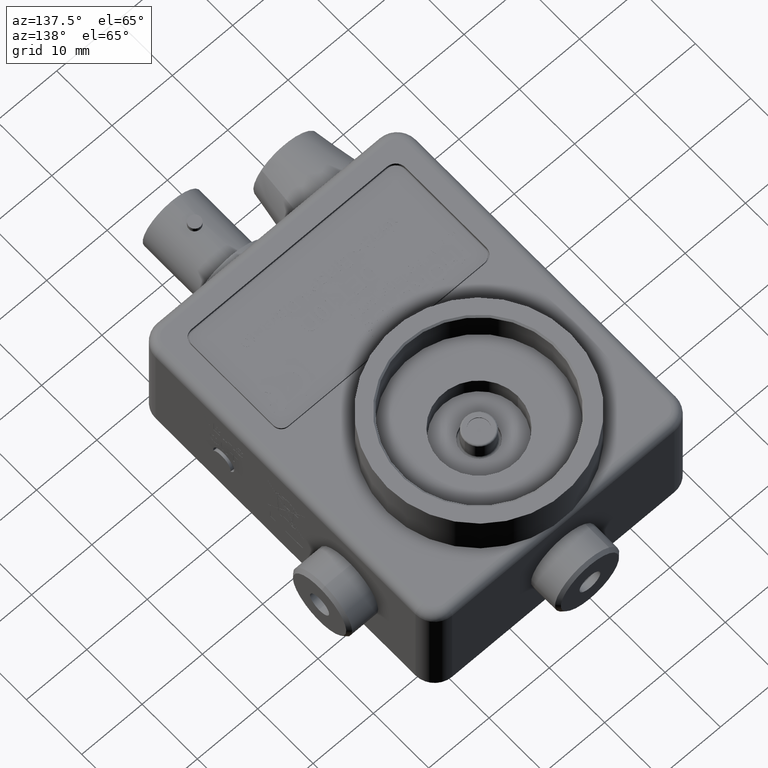
[diagram: clean part render]
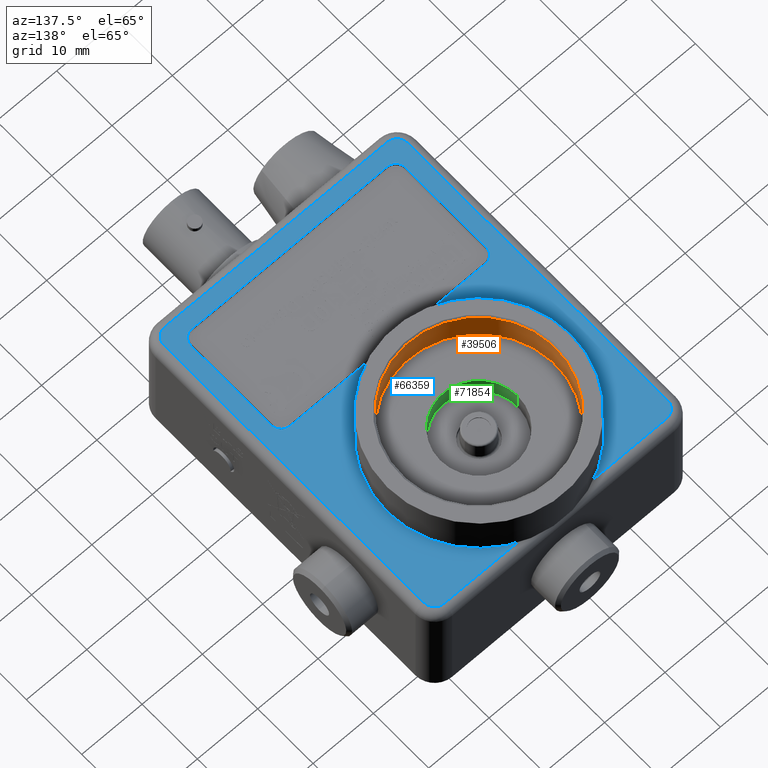
[diagram: same view with three faces highlighted in distinct colors, each labeled with its STEP entity id]
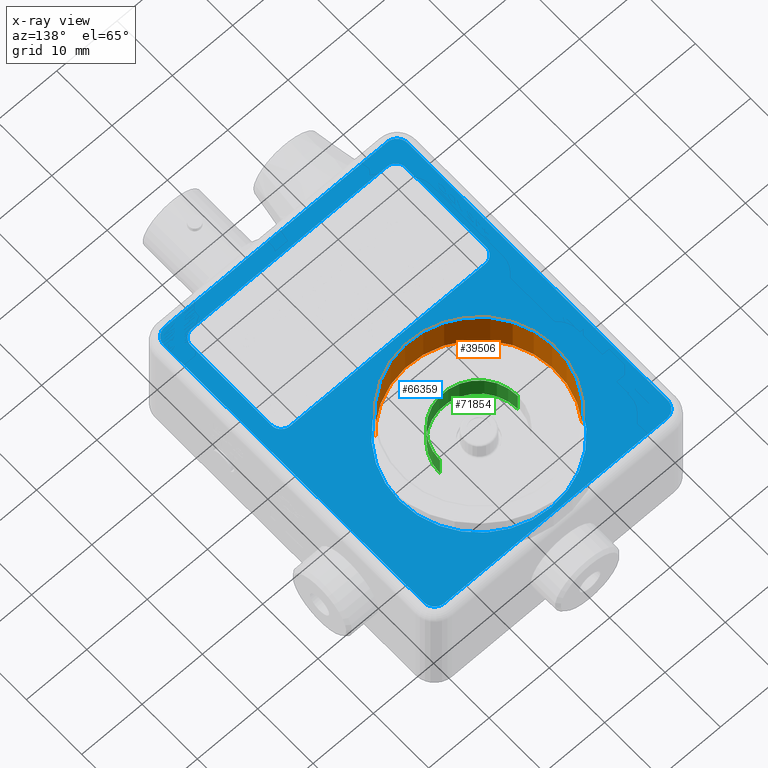
[diagram: x-ray of the same camera — body ghosted, the three highlighted faces saturated]
A machine part, auxiliary view with three faces highlighted in distinct colors.
The next image is the same camera in x-ray (body ghosted, the three faces saturated) — at least one of them is partly hidden behind the body in this view.
Their STEP definitions:

[orange] entity #39506 — the highlighted cylindrical surface (partial cylindrical patch) has radius 12.7 mm, axis along (-0, 0, 1).
#30874 = CARTESIAN_POINT ( 'NONE',  ( 1.255650819434726200, 1.207686105886266700, 1.020000000000000200 ) ) ;
#30875 = CARTESIAN_POINT ( 'NONE',  ( 0.4443491805652735000, 1.792313894113734000, 1.020000000000000200 ) ) ;
#30876 = DIRECTION ( 'NONE',  ( 0.8113016388694528300, -0.5846277882274671900, 0.0000000000000000000 ) ) ;
#30877 = DIRECTION ( 'NONE',  ( -5.498158776271431000E-031, 1.224606353822379000E-016, 1.000000000000000000 ) ) ;
#30878 = CARTESIAN_POINT ( 'NONE',  ( 0.8499999999999998700, 1.500000000000000400, 1.020000000000000200 ) ) ;
#30879 = AXIS2_PLACEMENT_3D ( 'NONE', #30878, #30877, #30876 ) ;
#30880 = CIRCLE ( 'NONE', #30879, 0.5000000000000000000 ) ;
#30995 = CYLINDRICAL_SURFACE ( 'NONE', #31051, 0.5000000000000000000 ) ;
#31013 = FACE_OUTER_BOUND ( 'NONE', #39509, .T. ) ;
#31040 = DIRECTION ( 'NONE',  ( -5.498158776271431000E-031, 1.224606353822379000E-016, 1.000000000000000000 ) ) ;
#31041 = VECTOR ( 'NONE', #31040, 39.37007874015748100 ) ;
#31042 = CARTESIAN_POINT ( 'NONE',  ( 1.255650819434726200, 1.207686105886266700, 0.7500000000000001100 ) ) ;
#31044 = LINE ( 'NONE', #31042, #31041 ) ;
#31045 = DIRECTION ( 'NONE',  ( -5.498158776271431000E-031, 1.224606353822379000E-016, 1.000000000000000000 ) ) ;
#31046 = VECTOR ( 'NONE', #31045, 39.37007874015748100 ) ;
#31047 = CARTESIAN_POINT ( 'NONE',  ( 0.4443491805652734500, 1.792313894113734000, 0.7500000000000001100 ) ) ;
#31048 = DIRECTION ( 'NONE',  ( 0.8113016388694528300, -0.5846277882274671900, 0.0000000000000000000 ) ) ;
#31049 = DIRECTION ( 'NONE',  ( -5.498158776271431000E-031, 1.224606353822379000E-016, 1.000000000000000000 ) ) ;
#31050 = CARTESIAN_POINT ( 'NONE',  ( 0.8499999999999998700, 1.500000000000000400, 0.7500000000000001100 ) ) ;
#31051 = AXIS2_PLACEMENT_3D ( 'NONE', #31050, #31049, #31048 ) ;
#31052 = LINE ( 'NONE', #31047, #31046 ) ;
#31092 = CARTESIAN_POINT ( 'NONE',  ( 0.4443491805652735000, 1.792313894113734000, 0.7600000000000003400 ) ) ;
#31093 = CARTESIAN_POINT ( 'NONE',  ( 1.255650819434726200, 1.207686105886266700, 0.7600000000000003400 ) ) ;
#31094 = DIRECTION ( 'NONE',  ( 0.8113016388694528300, -0.5846277882274671900, 0.0000000000000000000 ) ) ;
#31095 = DIRECTION ( 'NONE',  ( 5.498158776271431000E-031, -1.224606353822379000E-016, -1.000000000000000000 ) ) ;
#31096 = AXIS2_PLACEMENT_3D ( 'NONE', #31102, #31095, #31094 ) ;
#31097 = CIRCLE ( 'NONE', #31096, 0.5000000000000000000 ) ;
#31102 = CARTESIAN_POINT ( 'NONE',  ( 0.8499999999999998700, 1.500000000000000400, 0.7600000000000003400 ) ) ;
#39426 = EDGE_CURVE ( 'NONE', #39429, #39431, #30880, .T. ) ;
#39429 = VERTEX_POINT ( 'NONE', #30875 ) ;
#39431 = VERTEX_POINT ( 'NONE', #30874 ) ;
#39506 = ADVANCED_FACE ( 'NONE', ( #31013 ), #30995, .F. ) ;
#39509 = EDGE_LOOP ( 'NONE', ( #39511, #39513, #39517, #39519 ) ) ;
#39511 = ORIENTED_EDGE ( 'NONE', *, *, #39540, .T. ) ;
#39513 = ORIENTED_EDGE ( 'NONE', *, *, #39515, .T. ) ;
#39515 = EDGE_CURVE ( 'NONE', #39544, #39429, #31052, .T. ) ;
#39517 = ORIENTED_EDGE ( 'NONE', *, *, #39426, .T. ) ;
#39519 = ORIENTED_EDGE ( 'NONE', *, *, #39520, .F. ) ;
#39520 = EDGE_CURVE ( 'NONE', #39542, #39431, #31044, .T. ) ;
#39540 = EDGE_CURVE ( 'NONE', #39542, #39544, #31097, .T. ) ;
#39542 = VERTEX_POINT ( 'NONE', #31093 ) ;
#39544 = VERTEX_POINT ( 'NONE', #31092 ) ;

[blue] entity #66359 — the highlighted planar face has unit normal (0, 0, -1).
#13838 = FACE_BOUND ( 'NONE', #66553, .T. ) ;
#13839 = FACE_BOUND ( 'NONE', #66502, .T. ) ;
#13840 = FACE_OUTER_BOUND ( 'NONE', #66381, .T. ) ;
#13865 = VECTOR ( 'NONE', #13916, 39.37007874015748100 ) ;
#13866 = CARTESIAN_POINT ( 'NONE',  ( 0.0000000000000000000, 2.044999999999999900, 0.7500000000000001100 ) ) ;
#13867 = LINE ( 'NONE', #13866, #13865 ) ;
#13868 = CARTESIAN_POINT ( 'NONE',  ( 0.05499999999999999300, 1.975000000000000100, 0.7500000000000001100 ) ) ;
#13869 = DIRECTION ( 'NONE',  ( -1.000000000000000000, 0.0000000000000000000, 0.0000000000000000000 ) ) ;
#13870 = DIRECTION ( 'NONE',  ( 0.0000000000000000000, 0.0000000000000000000, 1.000000000000000000 ) ) ;
#13871 = CARTESIAN_POINT ( 'NONE',  ( 0.1249999999999999900, 1.975000000000000100, 0.7500000000000001100 ) ) ;
#13872 = AXIS2_PLACEMENT_3D ( 'NONE', #13871, #13870, #13869 ) ;
#13873 = CIRCLE ( 'NONE', #13872, 0.06999999999999999300 ) ;
#13874 = DIRECTION ( 'NONE',  ( -1.000000000000000000, 0.0000000000000000000, 0.0000000000000000000 ) ) ;
#13875 = DIRECTION ( 'NONE',  ( 0.0000000000000000000, 0.0000000000000000000, -1.000000000000000000 ) ) ;
#13876 = CARTESIAN_POINT ( 'NONE',  ( 0.0000000000000000000, 2.100000000000000100, 0.7500000000000001100 ) ) ;
#13877 = AXIS2_PLACEMENT_3D ( 'NONE', #13876, #13875, #13874 ) ;
#13878 = PLANE ( 'NONE',  #13877 ) ;
#13892 = CARTESIAN_POINT ( 'NONE',  ( 0.1249999999999999900, 0.05499999999999998600, 0.7500000000000001100 ) ) ;
#13893 = DIRECTION ( 'NONE',  ( -2.969399993113330200E-017, -1.000000000000000000, 0.0000000000000000000 ) ) ;
#13894 = VECTOR ( 'NONE', #13893, 39.37007874015748100 ) ;
#13895 = CARTESIAN_POINT ( 'NONE',  ( 0.1499999999999999700, 0.2125000000000001900, 0.7500000000000001100 ) ) ;
#13896 = LINE ( 'NONE', #13895, #13894 ) ;
#13897 = DIRECTION ( 'NONE',  ( 0.0000000000000000000, 1.000000000000000000, 0.0000000000000000000 ) ) ;
#13898 = VECTOR ( 'NONE', #13897, 39.37007874015748100 ) ;
#13899 = CARTESIAN_POINT ( 'NONE',  ( 1.644999999999999800, 2.100000000000000100, 0.7500000000000001100 ) ) ;
#13900 = LINE ( 'NONE', #13899, #13898 ) ;
#13901 = CARTESIAN_POINT ( 'NONE',  ( 0.05499999999999999300, 0.1249999999999999900, 0.7500000000000001100 ) ) ;
#13902 = CARTESIAN_POINT ( 'NONE',  ( 1.644999999999999800, 1.975000000000000100, 0.7500000000000001100 ) ) ;
#13903 = DIRECTION ( 'NONE',  ( -1.000000000000000000, 0.0000000000000000000, 0.0000000000000000000 ) ) ;
#13904 = DIRECTION ( 'NONE',  ( 0.0000000000000000000, 0.0000000000000000000, 1.000000000000000000 ) ) ;
#13905 = CARTESIAN_POINT ( 'NONE',  ( 1.575000000000000000, 0.1249999999999999900, 0.7500000000000001100 ) ) ;
#13906 = AXIS2_PLACEMENT_3D ( 'NONE', #13905, #13904, #13903 ) ;
#13907 = CIRCLE ( 'NONE', #13906, 0.07000000000000007600 ) ;
#13908 = CARTESIAN_POINT ( 'NONE',  ( 1.575000000000000000, 0.05500000000000009700, 0.7500000000000001100 ) ) ;
#13909 = DIRECTION ( 'NONE',  ( -1.000000000000000000, 0.0000000000000000000, 0.0000000000000000000 ) ) ;
#13910 = DIRECTION ( 'NONE',  ( 0.0000000000000000000, 0.0000000000000000000, 1.000000000000000000 ) ) ;
#13911 = CARTESIAN_POINT ( 'NONE',  ( 0.1249999999999999900, 0.1249999999999999900, 0.7500000000000001100 ) ) ;
#13912 = AXIS2_PLACEMENT_3D ( 'NONE', #13911, #13910, #13909 ) ;
#13913 = CIRCLE ( 'NONE', #13912, 0.06999999999999999300 ) ;
#13914 = CARTESIAN_POINT ( 'NONE',  ( 0.1500000000000000800, 0.7875000000000000900, 0.7500000000000001100 ) ) ;
#13915 = CARTESIAN_POINT ( 'NONE',  ( 1.574999999999999700, 2.045000000000000400, 0.7500000000000001100 ) ) ;
#13916 = DIRECTION ( 'NONE',  ( -1.000000000000000000, 0.0000000000000000000, 0.0000000000000000000 ) ) ;
#13967 = DIRECTION ( 'NONE',  ( -1.000000000000000000, 0.0000000000000000000, 0.0000000000000000000 ) ) ;
#13968 = VECTOR ( 'NONE', #13967, 39.37007874015748100 ) ;
#13969 = CARTESIAN_POINT ( 'NONE',  ( 0.2124999999999999900, 0.8499999999999999800, 0.7500000000000001100 ) ) ;
#13971 = LINE ( 'NONE', #13969, #13968 ) ;
#13977 = CARTESIAN_POINT ( 'NONE',  ( 1.549999999999999800, 0.2125000000000001900, 0.7500000000000001100 ) ) ;
#13978 = DIRECTION ( 'NONE',  ( -4.751039988981328300E-016, 1.000000000000000000, 0.0000000000000000000 ) ) ;
#13979 = VECTOR ( 'NONE', #13978, 39.37007874015748100 ) ;
#13980 = CARTESIAN_POINT ( 'NONE',  ( 1.549999999999999800, 0.2125000000000001900, 0.7500000000000001100 ) ) ;
#13981 = LINE ( 'NONE', #13980, #13979 ) ;
#13985 = CARTESIAN_POINT ( 'NONE',  ( 0.2124999999999999900, 0.8499999999999999800, 0.7500000000000001100 ) ) ;
#14007 = DIRECTION ( 'NONE',  ( -1.000000000000000000, 0.0000000000000000000, 0.0000000000000000000 ) ) ;
#14008 = DIRECTION ( 'NONE',  ( 0.0000000000000000000, 0.0000000000000000000, 1.000000000000000000 ) ) ;
#14009 = CARTESIAN_POINT ( 'NONE',  ( 1.574999999999999700, 1.975000000000000100, 0.7500000000000001100 ) ) ;
#14010 = AXIS2_PLACEMENT_3D ( 'NONE', #14009, #14008, #14007 ) ;
#14011 = CIRCLE ( 'NONE', #14010, 0.07000000000000007600 ) ;
#14012 = CARTESIAN_POINT ( 'NONE',  ( 0.1499999999999999700, 0.2125000000000001900, 0.7500000000000001100 ) ) ;
#14013 = DIRECTION ( 'NONE',  ( -1.000000000000000000, 0.0000000000000000000, 0.0000000000000000000 ) ) ;
#14014 = DIRECTION ( 'NONE',  ( 0.0000000000000000000, 0.0000000000000000000, 1.000000000000000000 ) ) ;
#14015 = CARTESIAN_POINT ( 'NONE',  ( 0.2124999999999999900, 0.2125000000000001900, 0.7500000000000001100 ) ) ;
#14016 = AXIS2_PLACEMENT_3D ( 'NONE', #14015, #14014, #14013 ) ;
#14017 = CIRCLE ( 'NONE', #14016, 0.06250000000000001400 ) ;
#14023 = CARTESIAN_POINT ( 'NONE',  ( 0.2124999999999999900, 0.1500000000000003000, 0.7500000000000001100 ) ) ;
#14024 = DIRECTION ( 'NONE',  ( 1.000000000000000000, 0.0000000000000000000, 0.0000000000000000000 ) ) ;
#14025 = VECTOR ( 'NONE', #14024, 39.37007874015748100 ) ;
#14026 = CARTESIAN_POINT ( 'NONE',  ( 1.487499999999999800, 0.1500000000000001900, 0.7500000000000001100 ) ) ;
#14027 = LINE ( 'NONE', #14026, #14025 ) ;
#14028 = CARTESIAN_POINT ( 'NONE',  ( 0.1249999999999999900, 2.044999999999999900, 0.7500000000000001100 ) ) ;
#14030 = CARTESIAN_POINT ( 'NONE',  ( 1.487499999999999600, 0.8499999999999999800, 0.7500000000000001100 ) ) ;
#14035 = DIRECTION ( 'NONE',  ( -1.000000000000000000, 0.0000000000000000000, 0.0000000000000000000 ) ) ;
#14036 = DIRECTION ( 'NONE',  ( 0.0000000000000000000, 0.0000000000000000000, 1.000000000000000000 ) ) ;
#14037 = CARTESIAN_POINT ( 'NONE',  ( 0.8499999999999999800, 1.500000000000000200, 0.7500000000000001100 ) ) ;
#14038 = AXIS2_PLACEMENT_3D ( 'NONE', #14037, #14036, #14035 ) ;
#14039 = CIRCLE ( 'NONE', #14038, 0.5174999999999999600 ) ;
#14063 = DIRECTION ( 'NONE',  ( 0.0000000000000000000, -1.000000000000000000, 0.0000000000000000000 ) ) ;
#14064 = VECTOR ( 'NONE', #14063, 39.37007874015748100 ) ;
#14065 = CARTESIAN_POINT ( 'NONE',  ( 0.05499999999999999300, 2.100000000000000100, 0.7500000000000001100 ) ) ;
#14066 = LINE ( 'NONE', #14065, #14064 ) ;
#14067 = CARTESIAN_POINT ( 'NONE',  ( 1.645000000000000000, 0.1249999999999999900, 0.7500000000000001100 ) ) ;
#14068 = DIRECTION ( 'NONE',  ( 1.000000000000000000, 0.0000000000000000000, 0.0000000000000000000 ) ) ;
#14069 = VECTOR ( 'NONE', #14068, 39.37007874015748100 ) ;
#14070 = CARTESIAN_POINT ( 'NONE',  ( 0.0000000000000000000, 0.05500000000000009700, 0.7500000000000001100 ) ) ;
#14071 = LINE ( 'NONE', #14070, #14069 ) ;
#14072 = CARTESIAN_POINT ( 'NONE',  ( 1.487499999999999800, 0.1500000000000001900, 0.7500000000000001100 ) ) ;
#14166 = DIRECTION ( 'NONE',  ( 1.000000000000000000, 0.0000000000000000000, 0.0000000000000000000 ) ) ;
#14167 = DIRECTION ( 'NONE',  ( 0.0000000000000000000, 0.0000000000000000000, 1.000000000000000000 ) ) ;
#14168 = AXIS2_PLACEMENT_3D ( 'NONE', #14175, #14167, #14166 ) ;
#14169 = CIRCLE ( 'NONE', #14168, 0.06249999999999991700 ) ;
#14170 = DIRECTION ( 'NONE',  ( 1.000000000000000000, 0.0000000000000000000, 0.0000000000000000000 ) ) ;
#14171 = DIRECTION ( 'NONE',  ( 0.0000000000000000000, 0.0000000000000000000, 1.000000000000000000 ) ) ;
#14172 = CARTESIAN_POINT ( 'NONE',  ( 1.487499999999999800, 0.2125000000000001900, 0.7500000000000001100 ) ) ;
#14173 = AXIS2_PLACEMENT_3D ( 'NONE', #14172, #14171, #14170 ) ;
#14174 = CIRCLE ( 'NONE', #14173, 0.06249999999999995100 ) ;
#14175 = CARTESIAN_POINT ( 'NONE',  ( 0.2124999999999999900, 0.7875000000000000900, 0.7500000000000001100 ) ) ;
#14177 = CARTESIAN_POINT ( 'NONE',  ( 1.549999999999999600, 0.7875000000000000900, 0.7500000000000001100 ) ) ;
#14178 = DIRECTION ( 'NONE',  ( -1.000000000000000000, 0.0000000000000000000, 0.0000000000000000000 ) ) ;
#14179 = DIRECTION ( 'NONE',  ( 0.0000000000000000000, 0.0000000000000000000, 1.000000000000000000 ) ) ;
#14180 = CARTESIAN_POINT ( 'NONE',  ( 1.487499999999999600, 0.7875000000000000900, 0.7500000000000001100 ) ) ;
#14181 = AXIS2_PLACEMENT_3D ( 'NONE', #14180, #14179, #14178 ) ;
#14182 = CIRCLE ( 'NONE', #14181, 0.06249999999999995100 ) ;
#28652 = CARTESIAN_POINT ( 'NONE',  ( 0.3324999999999999600, 1.500000000000000200, 0.7500000000000001100 ) ) ;
#28653 = DIRECTION ( 'NONE',  ( -1.000000000000000000, 0.0000000000000000000, 0.0000000000000000000 ) ) ;
#28654 = DIRECTION ( 'NONE',  ( 0.0000000000000000000, 0.0000000000000000000, 1.000000000000000000 ) ) ;
#28655 = CARTESIAN_POINT ( 'NONE',  ( 0.8499999999999999800, 1.500000000000000200, 0.7500000000000001100 ) ) ;
#28656 = AXIS2_PLACEMENT_3D ( 'NONE', #28655, #28654, #28653 ) ;
#28657 = CIRCLE ( 'NONE', #28656, 0.5174999999999999600 ) ;
#28735 = CARTESIAN_POINT ( 'NONE',  ( 1.367500000000000200, 1.500000000000000200, 0.7500000000000001100 ) ) ;
#66356 = ORIENTED_EDGE ( 'NONE', *, *, #66392, .T. ) ;
#66359 = ADVANCED_FACE ( 'NONE', ( #13840, #13839, #13838 ), #13878, .F. ) ;
#66361 = ORIENTED_EDGE ( 'NONE', *, *, #66363, .T. ) ;
#66363 = EDGE_CURVE ( 'NONE', #66485, #66366, #13873, .T. ) ;
#66366 = VERTEX_POINT ( 'NONE', #13868 ) ;
#66368 = ORIENTED_EDGE ( 'NONE', *, *, #66370, .T. ) ;
#66370 = EDGE_CURVE ( 'NONE', #66372, #66485, #13867, .T. ) ;
#66372 = VERTEX_POINT ( 'NONE', #13915 ) ;
#66374 = ORIENTED_EDGE ( 'NONE', *, *, #66396, .T. ) ;
#66376 = VERTEX_POINT ( 'NONE', #13914 ) ;
#66381 = EDGE_LOOP ( 'NONE', ( #66368, #66361, #66506, #66400, #66385, #66356, #66374, #66500 ) ) ;
#66383 = EDGE_CURVE ( 'NONE', #66394, #66402, #13913, .T. ) ;
#66385 = ORIENTED_EDGE ( 'NONE', *, *, #66504, .T. ) ;
#66387 = VERTEX_POINT ( 'NONE', #13908 ) ;
#66392 = EDGE_CURVE ( 'NONE', #66387, #66505, #13907, .T. ) ;
#66393 = VERTEX_POINT ( 'NONE', #13902 ) ;
#66394 = VERTEX_POINT ( 'NONE', #13901 ) ;
#66396 = EDGE_CURVE ( 'NONE', #66505, #66393, #13900, .T. ) ;
#66397 = ORIENTED_EDGE ( 'NONE', *, *, #66398, .F. ) ;
#66398 = EDGE_CURVE ( 'NONE', #66376, #66495, #13896, .T. ) ;
#66400 = ORIENTED_EDGE ( 'NONE', *, *, #66383, .T. ) ;
#66402 = VERTEX_POINT ( 'NONE', #13892 ) ;
#66440 = ORIENTED_EDGE ( 'NONE', *, *, #66554, .F. ) ;
#66441 = EDGE_CURVE ( 'NONE', #66483, #66464, #13971, .T. ) ;
#66464 = VERTEX_POINT ( 'NONE', #13985 ) ;
#66473 = ORIENTED_EDGE ( 'NONE', *, *, #66474, .F. ) ;
#66474 = EDGE_CURVE ( 'NONE', #66475, #66545, #13981, .T. ) ;
#66475 = VERTEX_POINT ( 'NONE', #13977 ) ;
#66476 = ORIENTED_EDGE ( 'NONE', *, *, #66478, .F. ) ;
#66478 = EDGE_CURVE ( 'NONE', #71840, #71880, #14039, .T. ) ;
#66482 = ORIENTED_EDGE ( 'NONE', *, *, #66441, .F. ) ;
#66483 = VERTEX_POINT ( 'NONE', #14030 ) ;
#66485 = VERTEX_POINT ( 'NONE', #14028 ) ;
#66486 = ORIENTED_EDGE ( 'NONE', *, *, #66487, .F. ) ;
#66487 = EDGE_CURVE ( 'NONE', #66489, #66499, #14027, .T. ) ;
#66489 = VERTEX_POINT ( 'NONE', #14023 ) ;
#66493 = ORIENTED_EDGE ( 'NONE', *, *, #66494, .F. ) ;
#66494 = EDGE_CURVE ( 'NONE', #66495, #66489, #14017, .T. ) ;
#66495 = VERTEX_POINT ( 'NONE', #14012 ) ;
#66497 = EDGE_CURVE ( 'NONE', #66393, #66372, #14011, .T. ) ;
#66499 = VERTEX_POINT ( 'NONE', #14072 ) ;
#66500 = ORIENTED_EDGE ( 'NONE', *, *, #66497, .T. ) ;
#66502 = EDGE_LOOP ( 'NONE', ( #66486, #66493, #66397, #66440, #66482, #66548, #66473, #66550 ) ) ;
#66504 = EDGE_CURVE ( 'NONE', #66402, #66387, #14071, .T. ) ;
#66505 = VERTEX_POINT ( 'NONE', #14067 ) ;
#66506 = ORIENTED_EDGE ( 'NONE', *, *, #66507, .T. ) ;
#66507 = EDGE_CURVE ( 'NONE', #66366, #66394, #14066, .T. ) ;
#66544 = EDGE_CURVE ( 'NONE', #66545, #66483, #14182, .T. ) ;
#66545 = VERTEX_POINT ( 'NONE', #14177 ) ;
#66548 = ORIENTED_EDGE ( 'NONE', *, *, #66544, .F. ) ;
#66550 = ORIENTED_EDGE ( 'NONE', *, *, #66551, .F. ) ;
#66551 = EDGE_CURVE ( 'NONE', #66499, #66475, #14174, .T. ) ;
#66553 = EDGE_LOOP ( 'NONE', ( #66476, #66556 ) ) ;
#66554 = EDGE_CURVE ( 'NONE', #66464, #66376, #14169, .T. ) ;
#66556 = ORIENTED_EDGE ( 'NONE', *, *, #71838, .F. ) ;
#71838 = EDGE_CURVE ( 'NONE', #71880, #71840, #28657, .T. ) ;
#71840 = VERTEX_POINT ( 'NONE', #28652 ) ;
#71880 = VERTEX_POINT ( 'NONE', #28735 ) ;

[green] entity #71854 — the highlighted cylindrical surface (partial cylindrical patch) has radius 6.4389 mm, axis along (0, 0, 1).
#28203 = DIRECTION ( 'NONE',  ( -1.000000000000000000, 0.0000000000000000000, 0.0000000000000000000 ) ) ;
#28204 = DIRECTION ( 'NONE',  ( 0.0000000000000000000, 0.0000000000000000000, 1.000000000000000000 ) ) ;
#28209 = CARTESIAN_POINT ( 'NONE',  ( 0.8499999999999999800, 1.500000000000000200, 0.6800000000000001600 ) ) ;
#28423 = AXIS2_PLACEMENT_3D ( 'NONE', #28209, #28204, #28203 ) ;
#28424 = CIRCLE ( 'NONE', #28423, 0.2534999999999999500 ) ;
#28480 = CARTESIAN_POINT ( 'NONE',  ( 1.103499999999999900, 1.500000000000000200, 0.6800000000000001600 ) ) ;
#28647 = DIRECTION ( 'NONE',  ( 0.0000000000000000000, 0.0000000000000000000, 1.000000000000000000 ) ) ;
#28648 = VECTOR ( 'NONE', #28647, 39.37007874015748100 ) ;
#28649 = CARTESIAN_POINT ( 'NONE',  ( 1.103499999999999900, 1.500000000000000200, 0.0000000000000000000 ) ) ;
#28650 = LINE ( 'NONE', #28649, #28648 ) ;
#28671 = FACE_OUTER_BOUND ( 'NONE', #71856, .T. ) ;
#28678 = DIRECTION ( 'NONE',  ( 1.000000000000000000, 0.0000000000000000000, 0.0000000000000000000 ) ) ;
#28679 = DIRECTION ( 'NONE',  ( 0.0000000000000000000, 0.0000000000000000000, 1.000000000000000000 ) ) ;
#28680 = CARTESIAN_POINT ( 'NONE',  ( 0.8499999999999999800, 1.500000000000000200, 0.8300000000000000700 ) ) ;
#28681 = AXIS2_PLACEMENT_3D ( 'NONE', #28680, #28679, #28678 ) ;
#28682 = CIRCLE ( 'NONE', #28681, 0.2534999999999998900 ) ;
#28683 = CARTESIAN_POINT ( 'NONE',  ( 0.5965000000000000300, 1.500000000000000200, 0.8300000000000000700 ) ) ;
#28684 = DIRECTION ( 'NONE',  ( 0.0000000000000000000, 0.0000000000000000000, 1.000000000000000000 ) ) ;
#28685 = VECTOR ( 'NONE', #28684, 39.37007874015748100 ) ;
#28686 = CARTESIAN_POINT ( 'NONE',  ( 0.5965000000000000300, 1.500000000000000200, 0.0000000000000000000 ) ) ;
#28691 = LINE ( 'NONE', #28686, #28685 ) ;
#28696 = CARTESIAN_POINT ( 'NONE',  ( 1.103499999999999900, 1.500000000000000200, 0.8300000000000000700 ) ) ;
#28703 = CARTESIAN_POINT ( 'NONE',  ( 0.5965000000000000300, 1.500000000000000200, 0.6800000000000001600 ) ) ;
#28704 = DIRECTION ( 'NONE',  ( 1.000000000000000000, 0.0000000000000000000, 0.0000000000000000000 ) ) ;
#28705 = DIRECTION ( 'NONE',  ( 0.0000000000000000000, 0.0000000000000000000, 1.000000000000000000 ) ) ;
#28706 = AXIS2_PLACEMENT_3D ( 'NONE', #28708, #28705, #28704 ) ;
#28707 = CYLINDRICAL_SURFACE ( 'NONE', #28706, 0.2534999999999998900 ) ;
#28708 = CARTESIAN_POINT ( 'NONE',  ( 0.8499999999999999800, 1.500000000000000200, 0.0000000000000000000 ) ) ;
#71745 = ORIENTED_EDGE ( 'NONE', *, *, #71841, .F. ) ;
#71753 = EDGE_CURVE ( 'NONE', #71858, #71755, #28424, .T. ) ;
#71755 = VERTEX_POINT ( 'NONE', #28480 ) ;
#71841 = EDGE_CURVE ( 'NONE', #71755, #71865, #28650, .T. ) ;
#71844 = ORIENTED_EDGE ( 'NONE', *, *, #71846, .T. ) ;
#71846 = EDGE_CURVE ( 'NONE', #71858, #71847, #28691, .T. ) ;
#71847 = VERTEX_POINT ( 'NONE', #28683 ) ;
#71849 = ORIENTED_EDGE ( 'NONE', *, *, #71850, .T. ) ;
#71850 = EDGE_CURVE ( 'NONE', #71847, #71865, #28682, .T. ) ;
#71854 = ADVANCED_FACE ( 'NONE', ( #28671 ), #28707, .F. ) ;
#71856 = EDGE_LOOP ( 'NONE', ( #71857, #71844, #71849, #71745 ) ) ;
#71857 = ORIENTED_EDGE ( 'NONE', *, *, #71753, .F. ) ;
#71858 = VERTEX_POINT ( 'NONE', #28703 ) ;
#71865 = VERTEX_POINT ( 'NONE', #28696 ) ;